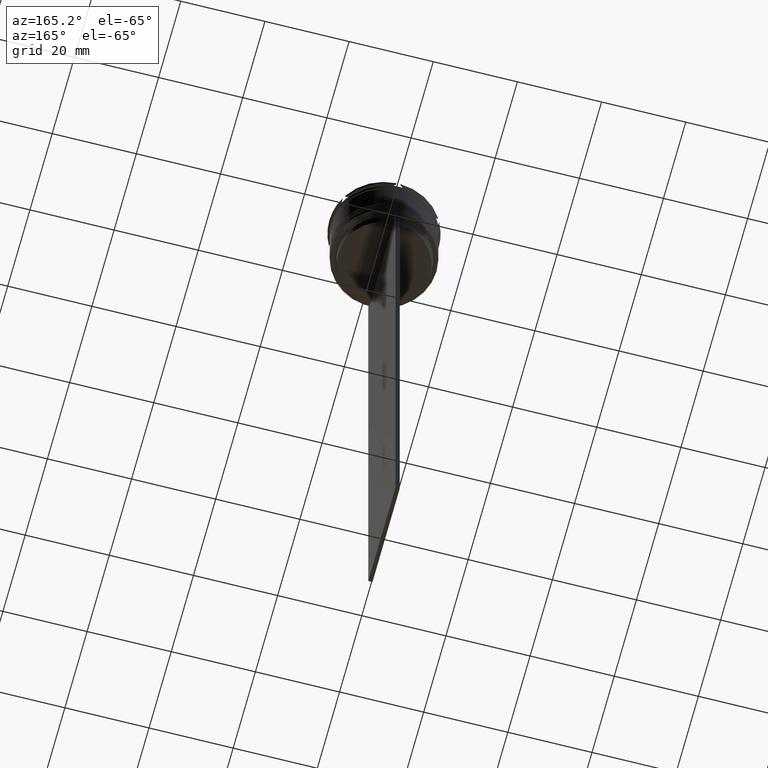
[diagram: clean part render]
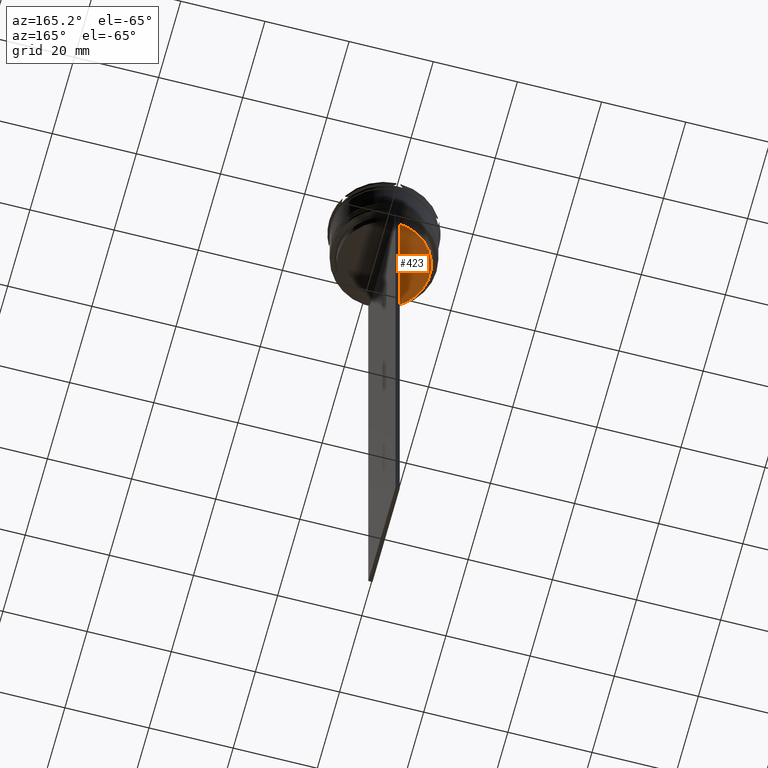
[diagram: same view with one face highlighted and labeled with its STEP entity id]
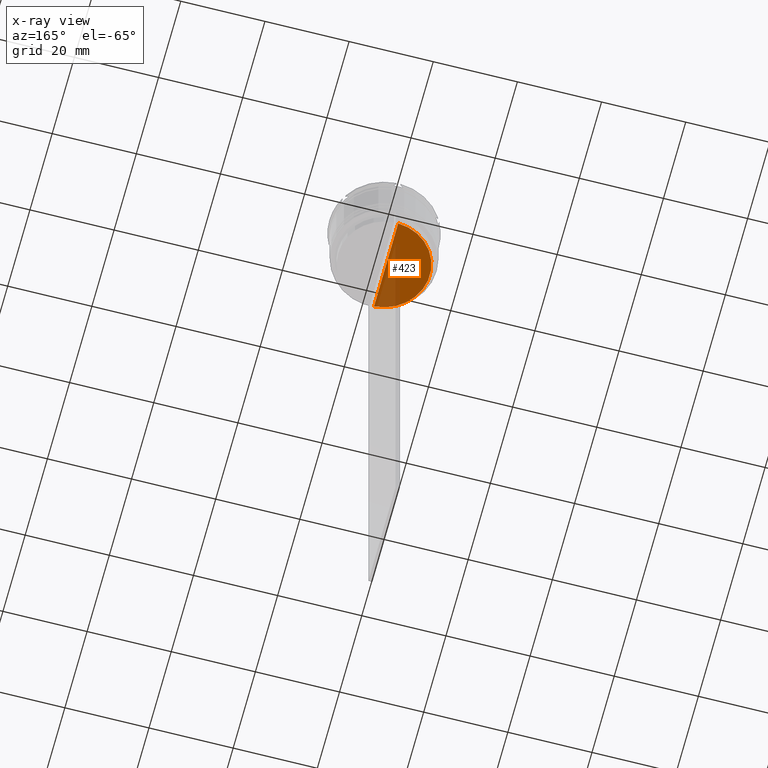
[diagram: x-ray of the same camera — body ghosted, the highlighted face saturated]
A machine part, auxiliary view. The second image highlights one B-rep face of the part: STEP entity #423.
The next image is the same camera in x-ray: the body ghosted, the highlighted face saturated — about 29% of this face is hidden behind the body in this view.
In plain terms, the highlighted planar face has unit normal (0, -0, 1).
Its self-contained STEP definition (entity closure, byte-faithful):
#65 = VERTEX_POINT ( 'NONE', #2309 ) ;
#126 = EDGE_LOOP ( 'NONE', ( #1275, #1401 ) ) ;
#219 = CARTESIAN_POINT ( 'NONE',  ( -0.4999999999999997780, 10.90000000000000213, -17.00000000000000000 ) ) ;
#392 = CARTESIAN_POINT ( 'NONE',  ( -0.4999999999999997780, 10.88852607105296144, -17.00000000000000000 ) ) ;
#423 = ADVANCED_FACE ( 'NONE', ( #992 ), #1162, .F. ) ;
#593 = EDGE_CURVE ( 'NONE', #1716, #65, #863, .T. ) ;
#604 = AXIS2_PLACEMENT_3D ( 'NONE', #1249, #2764, #787 ) ;
#787 = DIRECTION ( 'NONE',  ( 1.000000000000000000, 0.000000000000000000, 0.000000000000000000 ) ) ;
#863 = LINE ( 'NONE', #219, #2314 ) ;
#992 = FACE_OUTER_BOUND ( 'NONE', #126, .T. ) ;
#1162 = PLANE ( 'NONE',  #1500 ) ;
#1249 = CARTESIAN_POINT ( 'NONE',  ( 0.000000000000000000, 0.000000000000000000, -17.00000000000000000 ) ) ;
#1275 = ORIENTED_EDGE ( 'NONE', *, *, #1740, .F. ) ;
#1375 = DIRECTION ( 'NONE',  ( 1.000000000000000000, 0.000000000000000000, 0.000000000000000000 ) ) ;
#1401 = ORIENTED_EDGE ( 'NONE', *, *, #593, .T. ) ;
#1500 = AXIS2_PLACEMENT_3D ( 'NONE', #2084, #2450, #1375 ) ;
#1716 = VERTEX_POINT ( 'NONE', #392 ) ;
#1740 = EDGE_CURVE ( 'NONE', #1716, #65, #2598, .T. ) ;
#1939 = DIRECTION ( 'NONE',  ( 0.000000000000000000, -1.000000000000000000, 0.000000000000000000 ) ) ;
#2084 = CARTESIAN_POINT ( 'NONE',  ( 0.000000000000000000, 10.90000000000000213, -17.00000000000000000 ) ) ;
#2309 = CARTESIAN_POINT ( 'NONE',  ( -0.4999999999999997780, -10.88852607105296144, -17.00000000000000000 ) ) ;
#2314 = VECTOR ( 'NONE', #1939, 1000.000000000000000 ) ;
#2450 = DIRECTION ( 'NONE',  ( 0.000000000000000000, -0.000000000000000000, 1.000000000000000000 ) ) ;
#2598 = CIRCLE ( 'NONE', #604, 10.90000000000000213 ) ;
#2764 = DIRECTION ( 'NONE',  ( -0.000000000000000000, -0.000000000000000000, 1.000000000000000000 ) ) ;